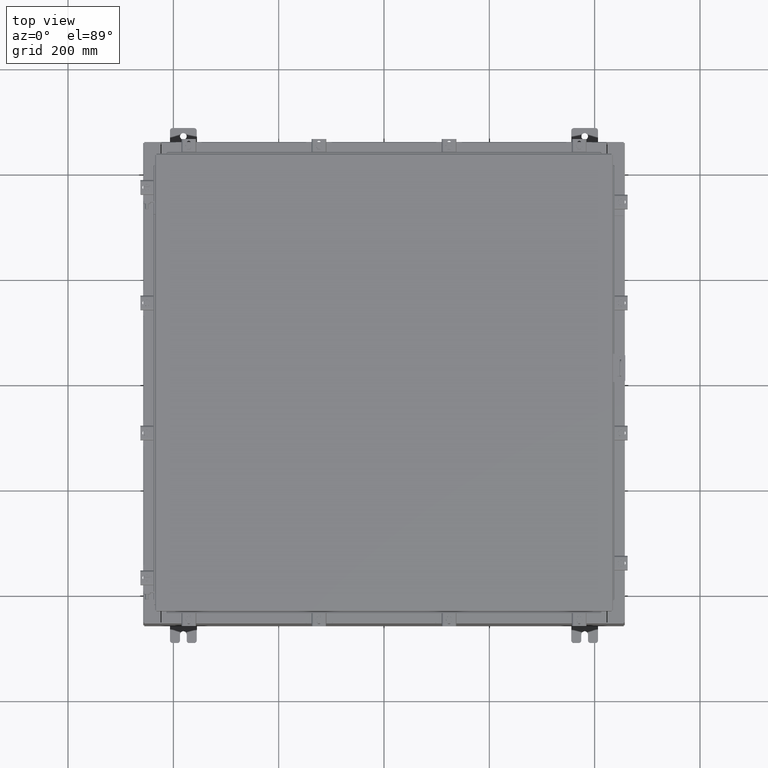
[diagram: clean part render]
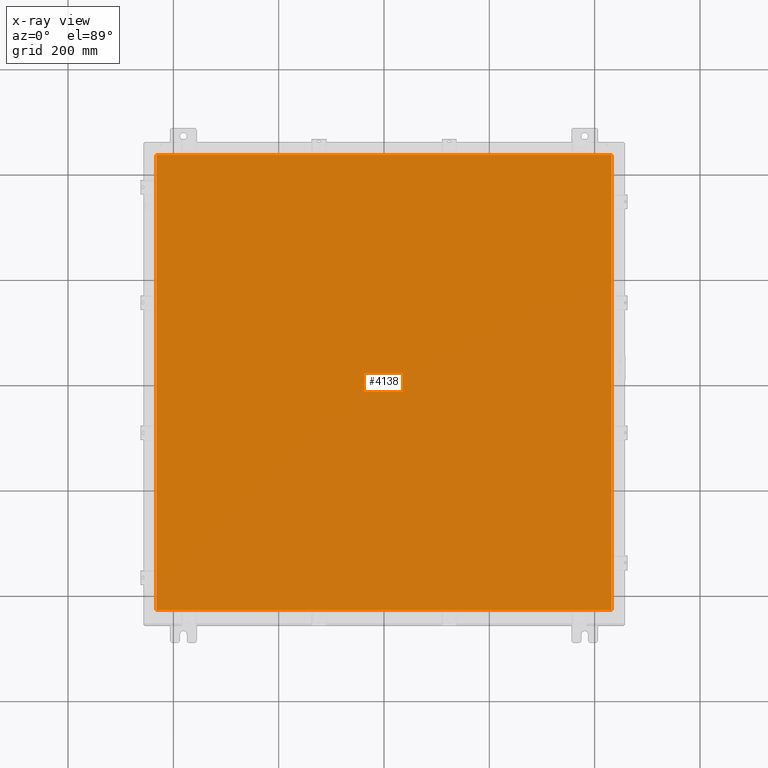
[diagram: x-ray — body ghosted, one internal face saturated and labeled with its STEP entity id]
A machine part, top view, then the same camera in x-ray: the body is ghosted and one INTERNAL B-rep face — a face not visible from any outside direction — is saturated and labeled: STEP entity #4138.
In plain terms, the highlighted planar face has unit normal (0, 0, -1).
Its self-contained STEP definition (entity closure, byte-faithful):
#1805 = EDGE_LOOP ( 'NONE', ( #14986, #13457, #2862, #10208 ) ) ;
#2418 = EDGE_CURVE ( 'NONE', #6276, #14329, #19989, .T. ) ;
#2686 = VECTOR ( 'NONE', #13656, 39.37007874015748100 ) ;
#2862 = ORIENTED_EDGE ( 'NONE', *, *, #24142, .F. ) ;
#4138 = ADVANCED_FACE ( 'NONE', ( #8076 ), #9722, .T. ) ;
#5295 = VERTEX_POINT ( 'NONE', #26300 ) ;
#6276 = VERTEX_POINT ( 'NONE', #24105 ) ;
#6830 = EDGE_CURVE ( 'NONE', #14329, #5295, #16792, .T. ) ;
#8076 = FACE_OUTER_BOUND ( 'NONE', #1805, .T. ) ;
#8363 = CARTESIAN_POINT ( 'NONE',  ( 17.00630000000000000, -17.00630000000000000, -0.07470000000000015500 ) ) ;
#8387 = LINE ( 'NONE', #19796, #25273 ) ;
#8510 = DIRECTION ( 'NONE',  ( -1.000000000000000000, -0.0000000000000000000, -0.0000000000000000000 ) ) ;
#8770 = CARTESIAN_POINT ( 'NONE',  ( 17.00630000000000000, 17.00630000000000000, -0.07470000000000015500 ) ) ;
#8814 = VECTOR ( 'NONE', #12068, 39.37007874015748100 ) ;
#8913 = CARTESIAN_POINT ( 'NONE',  ( 0.0000000000000000000, 0.0000000000000000000, -0.07470000000000015500 ) ) ;
#9463 = LINE ( 'NONE', #26407, #2686 ) ;
#9624 = DIRECTION ( 'NONE',  ( 0.0000000000000000000, 0.0000000000000000000, -1.000000000000000000 ) ) ;
#9722 = PLANE ( 'NONE',  #11266 ) ;
#9984 = DIRECTION ( 'NONE',  ( -1.000000000000000000, 0.0000000000000000000, -0.0000000000000000000 ) ) ;
#10208 = ORIENTED_EDGE ( 'NONE', *, *, #6830, .F. ) ;
#11266 = AXIS2_PLACEMENT_3D ( 'NONE', #8913, #9624, #9984 ) ;
#11330 = DIRECTION ( 'NONE',  ( 0.0000000000000000000, -1.000000000000000000, 0.0000000000000000000 ) ) ;
#12068 = DIRECTION ( 'NONE',  ( 0.0000000000000000000, 1.000000000000000000, 0.0000000000000000000 ) ) ;
#13457 = ORIENTED_EDGE ( 'NONE', *, *, #22219, .F. ) ;
#13656 = DIRECTION ( 'NONE',  ( 1.000000000000000000, -0.0000000000000000000, -0.0000000000000000000 ) ) ;
#14329 = VERTEX_POINT ( 'NONE', #17546 ) ;
#14986 = ORIENTED_EDGE ( 'NONE', *, *, #2418, .F. ) ;
#16792 = LINE ( 'NONE', #8770, #23166 ) ;
#17096 = CARTESIAN_POINT ( 'NONE',  ( -17.00630000000000000, -17.00630000000000000, -0.07470000000000015500 ) ) ;
#17546 = CARTESIAN_POINT ( 'NONE',  ( 17.00630000000000000, 17.00630000000000000, -0.07470000000000015500 ) ) ;
#19796 = CARTESIAN_POINT ( 'NONE',  ( -17.00630000000000000, 17.00630000000000000, -0.07470000000000015500 ) ) ;
#19989 = LINE ( 'NONE', #8363, #8814 ) ;
#22219 = EDGE_CURVE ( 'NONE', #26419, #6276, #9463, .T. ) ;
#23166 = VECTOR ( 'NONE', #8510, 39.37007874015748100 ) ;
#24105 = CARTESIAN_POINT ( 'NONE',  ( 17.00630000000000000, -17.00630000000000000, -0.07470000000000015500 ) ) ;
#24142 = EDGE_CURVE ( 'NONE', #5295, #26419, #8387, .T. ) ;
#25273 = VECTOR ( 'NONE', #11330, 39.37007874015748100 ) ;
#26300 = CARTESIAN_POINT ( 'NONE',  ( -17.00630000000000000, 17.00630000000000000, -0.07470000000000015500 ) ) ;
#26407 = CARTESIAN_POINT ( 'NONE',  ( -17.00630000000000000, -17.00630000000000000, -0.07470000000000015500 ) ) ;
#26419 = VERTEX_POINT ( 'NONE', #17096 ) ;